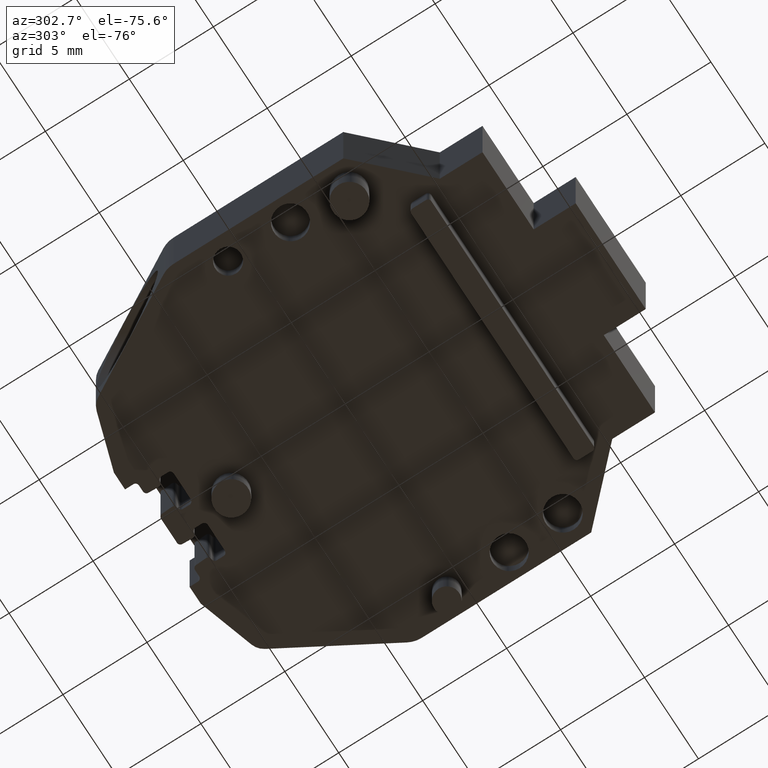
[diagram: clean part render]
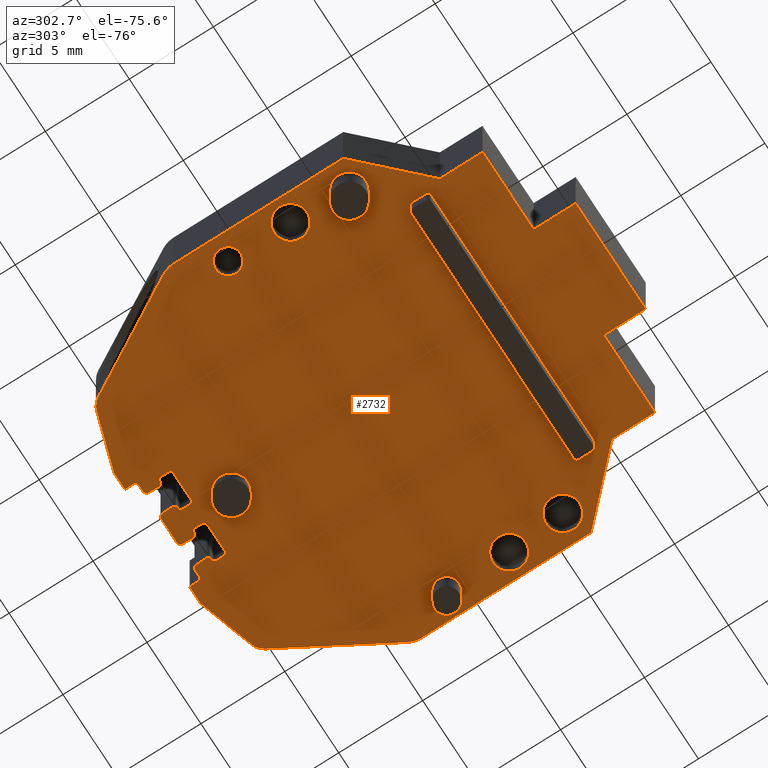
[diagram: same view with one face highlighted and labeled with its STEP entity id]
A machine part, auxiliary view. The second image highlights one B-rep face of the part: STEP entity #2732.
In plain terms, the highlighted planar face has unit normal (0, 0, 1).
Its self-contained STEP definition (entity closure, byte-faithful):
#17 = CARTESIAN_POINT ( 'NONE',  ( 284.1081404499333900, 456.0046860200184300, -56.83000000000000500 ) ) ;
#23 = CARTESIAN_POINT ( 'NONE',  ( 279.9868997377750500, 449.3919330427179400, -56.83000000000000500 ) ) ;
#24 = CARTESIAN_POINT ( 'NONE',  ( 283.2859378434519600, 432.5003766282130200, -56.83000000000001300 ) ) ;
#27 = CARTESIAN_POINT ( 'NONE',  ( 283.5428208456533000, 455.5509690692700200, -56.83000000000000500 ) ) ;
#30 = CARTESIAN_POINT ( 'NONE',  ( 299.2859378434519600, 432.5003766282130200, -56.83000000000001300 ) ) ;
#35 = CARTESIAN_POINT ( 'NONE',  ( 279.7859378434514500, 438.5444896448189500, -56.83000000000001300 ) ) ;
#39 = CARTESIAN_POINT ( 'NONE',  ( 288.2920486904611200, 456.5016313775170100, -56.83000000000000500 ) ) ;
#43 = CARTESIAN_POINT ( 'NONE',  ( 288.0359378434521300, 430.0003766282130800, -56.83000000000001300 ) ) ;
#46 = CARTESIAN_POINT ( 'NONE',  ( 294.5359378434520200, 430.0003766282130800, -56.83000000000001300 ) ) ;
#50 = CARTESIAN_POINT ( 'NONE',  ( 294.5359378434520200, 432.5003766282130200, -56.83000000000001300 ) ) ;
#55 = CARTESIAN_POINT ( 'NONE',  ( 283.7649751005490100, 435.8503766282130400, -56.83000000000000500 ) ) ;
#65 = CARTESIAN_POINT ( 'NONE',  ( 299.2859378434519600, 435.0444896448179300, -56.83000000000001300 ) ) ;
#66 = CARTESIAN_POINT ( 'NONE',  ( 288.0359378434521300, 432.5003766282130200, -56.83000000000001300 ) ) ;
#67 = CARTESIAN_POINT ( 'NONE',  ( 279.7859378434514500, 448.6419330427179900, -56.83000000000000500 ) ) ;
#69 = CARTESIAN_POINT ( 'NONE',  ( 283.2859378434519600, 435.0444896448184400, -56.83000000000001300 ) ) ;
#76 = CARTESIAN_POINT ( 'NONE',  ( 302.7859378434516200, 438.5444896448179300, -56.83000000000001300 ) ) ;
#87 = DIRECTION ( 'NONE',  ( -0.0000000000000000000, -0.0000000000000000000, 1.000000000000000000 ) ) ;
#99 = CARTESIAN_POINT ( 'NONE',  ( 284.4088462494376000, 455.0509690692701400, -56.83000000000000500 ) ) ;
#100 = CARTESIAN_POINT ( 'NONE',  ( 294.2795907366747800, 440.0117559366233900, -56.83000000000000500 ) ) ;
#101 = DIRECTION ( 'NONE',  ( -1.000000000000000000, 5.551115123125777700E-014, 0.0000000000000000000 ) ) ;
#139 = DIRECTION ( 'NONE',  ( 1.390694383119340700E-005, 0.9999999999032984600, 0.0000000000000000000 ) ) ;
#160 = CARTESIAN_POINT ( 'NONE',  ( 281.3859378434639800, 439.2072313446219600, -56.83000000000000500 ) ) ;
#165 = DIRECTION ( 'NONE',  ( -0.0000000000000000000, -0.0000000000000000000, 1.000000000000000000 ) ) ;
#168 = DIRECTION ( 'NONE',  ( 1.000000000000000000, 0.0000000000000000000, 0.0000000000000000000 ) ) ;
#185 = DIRECTION ( 'NONE',  ( -0.0000000000000000000, -0.0000000000000000000, -1.000000000000000000 ) ) ;
#188 = DIRECTION ( 'NONE',  ( -0.0000000000000000000, -0.0000000000000000000, -1.000000000000000000 ) ) ;
#189 = DIRECTION ( 'NONE',  ( 1.000000000000000000, 0.0000000000000000000, 0.0000000000000000000 ) ) ;
#197 = CARTESIAN_POINT ( 'NONE',  ( 301.1859378434595600, 439.2072313446179800, -56.83000000000000500 ) ) ;
#201 = DIRECTION ( 'NONE',  ( -1.000000000000000000, 0.0000000000000000000, 0.0000000000000000000 ) ) ;
#202 = CARTESIAN_POINT ( 'NONE',  ( 288.9108106226161700, 454.7052138238250300, -56.83000000000000500 ) ) ;
#205 = DIRECTION ( 'NONE',  ( -1.000000000000000000, 0.0000000000000000000, 0.0000000000000000000 ) ) ;
#216 = LINE ( 'NONE', #218, #4402 ) ;
#218 = CARTESIAN_POINT ( 'NONE',  ( 293.6606835609339900, 454.5052019535990000, -56.83000000000000500 ) ) ;
#224 = CARTESIAN_POINT ( 'NONE',  ( 290.5068563677299900, 454.7052037537719700, -56.83000000000000500 ) ) ;
#225 = DIRECTION ( 'NONE',  ( -1.000000000000000000, 0.0000000000000000000, 0.0000000000000000000 ) ) ;
#228 = DIRECTION ( 'NONE',  ( 1.000000000000000000, 0.0000000000000000000, 0.0000000000000000000 ) ) ;
#232 = CARTESIAN_POINT ( 'NONE',  ( 301.4259378434514900, 442.5572313446180000, -56.83000000000000500 ) ) ;
#234 = DIRECTION ( 'NONE',  ( -0.0000000000000000000, -0.0000000000000000000, -1.000000000000000000 ) ) ;
#242 = DIRECTION ( 'NONE',  ( -0.0000000000000000000, -0.0000000000000000000, 1.000000000000000000 ) ) ;
#255 = DIRECTION ( 'NONE',  ( -1.000000000000000000, 0.0000000000000000000, 0.0000000000000000000 ) ) ;
#260 = CARTESIAN_POINT ( 'NONE',  ( 293.6606835609339900, 454.7052019535989900, -56.83000000000000500 ) ) ;
#267 = DIRECTION ( 'NONE',  ( -0.0000000000000000000, -0.0000000000000000000, 1.000000000000000000 ) ) ;
#285 = CARTESIAN_POINT ( 'NONE',  ( 290.5229063895730000, 455.5037689013719300, -56.83000000000000500 ) ) ;
#287 = DIRECTION ( 'NONE',  ( -0.0000000000000000000, -0.0000000000000000000, 1.000000000000000000 ) ) ;
#289 = DIRECTION ( 'NONE',  ( -1.000000000000000000, 0.0000000000000000000, 0.0000000000000000000 ) ) ;
#305 = CARTESIAN_POINT ( 'NONE',  ( 301.4252887473445500, 446.2741209569410300, -56.83000000000000500 ) ) ;
#321 = DIRECTION ( 'NONE',  ( 1.000000000000000000, 0.0000000000000000000, 0.0000000000000000000 ) ) ;
#329 = DIRECTION ( 'NONE',  ( -0.0000000000000000000, -0.0000000000000000000, -1.000000000000000000 ) ) ;
#336 = LINE ( 'NONE', #367, #4471 ) ;
#367 = CARTESIAN_POINT ( 'NONE',  ( 290.5068551058545800, 454.5052037537760200, -56.83000000000000500 ) ) ;
#375 = DIRECTION ( 'NONE',  ( 0.9999999999800958100, -6.309376706133646600E-006, 0.0000000000000000000 ) ) ;
#384 = DIRECTION ( 'NONE',  ( -0.0000000000000000000, -0.0000000000000000000, 1.000000000000000000 ) ) ;
#387 = DIRECTION ( 'NONE',  ( -1.000000000000000000, 0.0000000000000000000, 0.0000000000000000000 ) ) ;
#390 = DIRECTION ( 'NONE',  ( -0.0000000000000000000, -0.0000000000000000000, 1.000000000000000000 ) ) ;
#395 = CARTESIAN_POINT ( 'NONE',  ( 292.0646318890470100, 454.7052019535989900, -56.83000000000000500 ) ) ;
#398 = DIRECTION ( 'NONE',  ( -1.000000000000000000, 0.0000000000000000000, 0.0000000000000000000 ) ) ;
#399 = DIRECTION ( 'NONE',  ( -1.000000000000000000, 0.0000000000000000000, 0.0000000000000000000 ) ) ;
#400 = DIRECTION ( 'NONE',  ( -0.0000000000000000000, -0.0000000000000000000, -1.000000000000000000 ) ) ;
#401 = DIRECTION ( 'NONE',  ( -0.0000000000000000000, -0.0000000000000000000, 1.000000000000000000 ) ) ;
#402 = DIRECTION ( 'NONE',  ( 1.000000000000000000, 0.0000000000000000000, 0.0000000000000000000 ) ) ;
#405 = LINE ( 'NONE', #463, #4433 ) ;
#408 = CARTESIAN_POINT ( 'NONE',  ( 290.5068581680789600, 455.1040893572000000, -56.83000000000000500 ) ) ;
#413 = CARTESIAN_POINT ( 'NONE',  ( 293.6767323104389800, 455.5037672983211200, -56.83000000000000500 ) ) ;
#416 = CARTESIAN_POINT ( 'NONE',  ( 281.1465869395589700, 446.2741209569480200, -56.83000000000000500 ) ) ;
#423 = DIRECTION ( 'NONE',  ( 1.000000000000000000, 0.0000000000000000000, 0.0000000000000000000 ) ) ;
#425 = DIRECTION ( 'NONE',  ( -0.0000000000000000000, -0.0000000000000000000, 1.000000000000000000 ) ) ;
#427 = LINE ( 'NONE', #466, #4468 ) ;
#432 = DIRECTION ( 'NONE',  ( 0.0000000000000000000, 1.000000000000000000, 0.0000000000000000000 ) ) ;
#446 = CARTESIAN_POINT ( 'NONE',  ( 291.2859378434519600, 452.5954399154260800, -56.83000000000000500 ) ) ;
#452 = DIRECTION ( 'NONE',  ( 4.368507394529123000E-006, -0.9999999999904580800, 0.0000000000000000000 ) ) ;
#455 = CARTESIAN_POINT ( 'NONE',  ( 293.6606835609339900, 455.1040893809440000, -56.83000000000000500 ) ) ;
#456 = DIRECTION ( 'NONE',  ( -1.000000000000000000, 0.0000000000000000000, 0.0000000000000000000 ) ) ;
#460 = DIRECTION ( 'NONE',  ( -0.0000000000000000000, -0.0000000000000000000, -1.000000000000000000 ) ) ;
#463 = CARTESIAN_POINT ( 'NONE',  ( 290.7068563677300400, 454.7052037537719700, -56.83000000000000500 ) ) ;
#466 = CARTESIAN_POINT ( 'NONE',  ( 291.8646318890490100, 454.7052010798979600, -56.83000000000000500 ) ) ;
#514 = DIRECTION ( 'NONE',  ( -0.0000000000000000000, -0.0000000000000000000, -1.000000000000000000 ) ) ;
#515 = CARTESIAN_POINT ( 'NONE',  ( 293.8606835609340400, 455.1040893809440000, -56.83000000000000500 ) ) ;
#520 = LINE ( 'NONE', #515, #4526 ) ;
#535 = DIRECTION ( 'NONE',  ( -1.000000000000000000, 0.0000000000000000000, 0.0000000000000000000 ) ) ;
#537 = CARTESIAN_POINT ( 'NONE',  ( 281.1459378434525400, 442.5572313446180000, -56.83000000000000500 ) ) ;
#539 = DIRECTION ( 'NONE',  ( 0.0000000000000000000, 1.000000000000000000, 0.0000000000000000000 ) ) ;
#615 = LINE ( 'NONE', #644, #4522 ) ;
#644 = CARTESIAN_POINT ( 'NONE',  ( 288.7108106226160100, 454.7052138238250300, -56.83000000000000500 ) ) ;
#648 = DIRECTION ( 'NONE',  ( -0.0000000000000000000, -1.000000000000000000, 0.0000000000000000000 ) ) ;
#649 = DIRECTION ( 'NONE',  ( -0.0000000000000000000, -0.0000000000000000000, 1.000000000000000000 ) ) ;
#651 = LINE ( 'NONE', #100, #3857 ) ;
#652 = CARTESIAN_POINT ( 'NONE',  ( 292.2483965457590200, 455.5124932857519900, -56.83000000000000500 ) ) ;
#656 = DIRECTION ( 'NONE',  ( -0.0000000000000000000, -0.0000000000000000000, 1.000000000000000000 ) ) ;
#659 = DIRECTION ( 'NONE',  ( -0.0000000000000000000, -0.0000000000000000000, 1.000000000000000000 ) ) ;
#661 = DIRECTION ( 'NONE',  ( -1.000000000000000000, -9.714286099459775500E-012, 0.0000000000000000000 ) ) ;
#671 = DIRECTION ( 'NONE',  ( -1.000000000000000000, 0.0000000000000000000, 0.0000000000000000000 ) ) ;
#672 = LINE ( 'NONE', #652, #3845 ) ;
#674 = DIRECTION ( 'NONE',  ( 0.04362993715479864700, -0.9990477609122940800, 0.0000000000000000000 ) ) ;
#678 = CARTESIAN_POINT ( 'NONE',  ( 290.5229063895730000, 455.5037689013719300, -56.83000000000000500 ) ) ;
#682 = DIRECTION ( 'NONE',  ( -1.000000000000000000, 0.0000000000000000000, 0.0000000000000000000 ) ) ;
#684 = CARTESIAN_POINT ( 'NONE',  ( 288.8947624654876400, 455.5037690984780200, -56.83000000000000500 ) ) ;
#691 = CARTESIAN_POINT ( 'NONE',  ( 292.0485869935766300, 455.5037672983211200, -56.83000000000000500 ) ) ;
#771 = EDGE_LOOP ( 'NONE', ( #1159, #1156 ) ) ;
#787 = EDGE_LOOP ( 'NONE', ( #1123, #1121 ) ) ;
#795 = EDGE_LOOP ( 'NONE', ( #1171, #1149 ) ) ;
#809 = EDGE_LOOP ( 'NONE', ( #1092, #1105, #1128, #1130, #1103, #1094, #1098, #1245, #1184, #1174, #1191, #1160, #1198, #1195, #1167, #1205, #1206, #1177, #1207, #1168, #1164, #1151, #1150, #1209, #1188, #1180, #1173, #1202, #1186, #1148, #1200, #1146, #1170, #1201, #1158, #1165, #1189, #1196, #1166, #1194, #1208, #1193, #1175, #1241, #1197, #1161, #1183, #1203, #1176, #1181, #1236, #1238, #1162, #1154, #1178, #1169 ) ) ;
#819 = EDGE_LOOP ( 'NONE', ( #1187, #1190 ) ) ;
#828 = EDGE_LOOP ( 'NONE', ( #1157, #1104 ) ) ;
#836 = CARTESIAN_POINT ( 'NONE',  ( 290.2859378434519600, 452.5954399154260800, -56.83000000000000500 ) ) ;
#840 = CARTESIAN_POINT ( 'NONE',  ( 300.6752887473441000, 446.2741209569410300, -56.83000000000000500 ) ) ;
#841 = EDGE_LOOP ( 'NONE', ( #1125, #1147, #1119, #1086, #1088, #1090, #1117, #1139 ) ) ;
#854 = EDGE_LOOP ( 'NONE', ( #1182, #1192 ) ) ;
#866 = EDGE_LOOP ( 'NONE', ( #1127, #1172 ) ) ;
#875 = CARTESIAN_POINT ( 'NONE',  ( 302.1859378434527300, 439.2072313446179800, -56.83000000000000500 ) ) ;
#883 = CARTESIAN_POINT ( 'NONE',  ( 290.5068551058545800, 454.5052037537760200, -56.83000000000000500 ) ) ;
#884 = CARTESIAN_POINT ( 'NONE',  ( 302.1752887473449500, 446.2741209569410300, -56.83000000000000500 ) ) ;
#887 = CARTESIAN_POINT ( 'NONE',  ( 288.7108106226160100, 454.7052138238250900, -56.83000000000000500 ) ) ;
#893 = CARTESIAN_POINT ( 'NONE',  ( 292.2859378434519600, 452.5954399154260800, -56.83000000000000500 ) ) ;
#894 = CARTESIAN_POINT ( 'NONE',  ( 291.8646301465086000, 455.1040879815687400, -56.83000000000000500 ) ) ;
#901 = CARTESIAN_POINT ( 'NONE',  ( 300.1859378434663800, 439.2072313446179800, -56.83000000000000500 ) ) ;
#903 = CARTESIAN_POINT ( 'NONE',  ( 282.3859378434512500, 439.2072313446219600, -56.83000000000000500 ) ) ;
#905 = CARTESIAN_POINT ( 'NONE',  ( 293.4767323104390500, 455.5037672983211200, -56.83000000000000500 ) ) ;
#908 = CARTESIAN_POINT ( 'NONE',  ( 293.6606835609339900, 454.5052019535990000, -56.83000000000000500 ) ) ;
#918 = CARTESIAN_POINT ( 'NONE',  ( 290.3230934614184100, 455.5124956180832800, -56.83000000000000500 ) ) ;
#930 = CARTESIAN_POINT ( 'NONE',  ( 302.4059378434515100, 442.5572313446180000, -56.83000000000000500 ) ) ;
#931 = CARTESIAN_POINT ( 'NONE',  ( 280.3859378434767700, 439.2072313446219600, -56.83000000000000500 ) ) ;
#938 = CARTESIAN_POINT ( 'NONE',  ( 281.8965869395589700, 446.2741209569480200, -56.83000000000000500 ) ) ;
#944 = CARTESIAN_POINT ( 'NONE',  ( 280.1659378434525800, 442.5572313446180000, -56.83000000000000500 ) ) ;
#945 = CARTESIAN_POINT ( 'NONE',  ( 294.2798269964685000, 457.0003766282129000, -56.83000000000000500 ) ) ;
#950 = CARTESIAN_POINT ( 'NONE',  ( 290.3229029849788400, 455.5037689013719300, -56.83000000000000500 ) ) ;
#954 = CARTESIAN_POINT ( 'NONE',  ( 293.8606835609340400, 455.1040893809440000, -56.83000000000000500 ) ) ;
#964 = CARTESIAN_POINT ( 'NONE',  ( 288.9108093607408700, 454.5052138238294800, -56.83000000000000500 ) ) ;
#970 = CARTESIAN_POINT ( 'NONE',  ( 300.4459378434515300, 442.5572313446180000, -56.83000000000000500 ) ) ;
#972 = CARTESIAN_POINT ( 'NONE',  ( 288.2920486904610600, 457.0003766282127300, -56.83000000000001300 ) ) ;
#974 = CARTESIAN_POINT ( 'NONE',  ( 288.7108106226160700, 455.1040911573150000, -56.83000000000000500 ) ) ;
#976 = CARTESIAN_POINT ( 'NONE',  ( 293.8606835609340400, 454.7052019535989900, -56.83000000000000500 ) ) ;
#977 = CARTESIAN_POINT ( 'NONE',  ( 291.8646318890486100, 454.7052011672678300, -56.83000000000000500 ) ) ;
#983 = CARTESIAN_POINT ( 'NONE',  ( 290.7068563677300400, 454.7052037537719700, -56.83000000000000500 ) ) ;
#984 = CARTESIAN_POINT ( 'NONE',  ( 290.5148821744148800, 455.3039265289373200, -56.83000000000000500 ) ) ;
#987 = CARTESIAN_POINT ( 'NONE',  ( 290.7068563677299800, 455.1040870071065000, -56.83000000000000500 ) ) ;
#990 = CARTESIAN_POINT ( 'NONE',  ( 292.0646318890470100, 454.5052019535990000, -56.83000000000000500 ) ) ;
#991 = CARTESIAN_POINT ( 'NONE',  ( 293.6687079356864300, 455.3039283396325900, -56.83000000000000500 ) ) ;
#992 = CARTESIAN_POINT ( 'NONE',  ( 295.3058080792579900, 457.0003766282129000, -56.83000000000001300 ) ) ;
#993 = CARTESIAN_POINT ( 'NONE',  ( 292.2483965457590200, 455.5124932857520400, -56.83000000000000500 ) ) ;
#994 = CARTESIAN_POINT ( 'NONE',  ( 289.0945721627969600, 455.5124917621238300, -56.83000000000000500 ) ) ;
#997 = CARTESIAN_POINT ( 'NONE',  ( 292.0566085700355600, 455.3039282272886200, -56.83000000000000500 ) ) ;
#1003 = CARTESIAN_POINT ( 'NONE',  ( 280.3965869395589200, 446.2741209569480200, -56.83000000000000500 ) ) ;
#1006 = CARTESIAN_POINT ( 'NONE',  ( 282.1259378434525000, 442.5572313446180000, -56.83000000000000500 ) ) ;
#1009 = CARTESIAN_POINT ( 'NONE',  ( 293.7028309886400200, 456.3016313775186700, -56.83000000000000500 ) ) ;
#1017 = CARTESIAN_POINT ( 'NONE',  ( 288.8686628735419500, 456.3016313775172000, -56.83000000000000500 ) ) ;
#1020 = CARTESIAN_POINT ( 'NONE',  ( 294.2798200604076400, 456.5016285961286300, -56.83000000000000500 ) ) ;
#1021 = CARTESIAN_POINT ( 'NONE',  ( 288.4920486904611600, 456.3016313775171400, -56.83000000000000500 ) ) ;
#1023 = CARTESIAN_POINT ( 'NONE',  ( 288.9027865440519900, 455.3039301278964800, -56.83000000000000500 ) ) ;
#1024 = CARTESIAN_POINT ( 'NONE',  ( 293.4769225986792700, 455.5124896309550900, -56.83000000000000500 ) ) ;
#1025 = CARTESIAN_POINT ( 'NONE',  ( 283.5649751005490200, 436.0503766282129700, -56.83000000000000500 ) ) ;
#1026 = CARTESIAN_POINT ( 'NONE',  ( 298.8069005863550300, 435.8503766282131000, -56.83000000000000500 ) ) ;
#1028 = CARTESIAN_POINT ( 'NONE',  ( 287.2660676076465100, 457.0003766282126200, -56.83000000000001300 ) ) ;
#1031 = CARTESIAN_POINT ( 'NONE',  ( 299.0069005863550200, 436.0503766282129700, -56.83000000000000500 ) ) ;
#1032 = CARTESIAN_POINT ( 'NONE',  ( 292.0224773587595500, 456.3016313775181600, -56.83000000000000500 ) ) ;
#1043 = CARTESIAN_POINT ( 'NONE',  ( 293.5030212768805300, 456.1103537101510600, -56.83000000000000500 ) ) ;
#1047 = CARTESIAN_POINT ( 'NONE',  ( 294.0798200604269800, 456.3016313775187900, -56.83000000000000500 ) ) ;
#1051 = CARTESIAN_POINT ( 'NONE',  ( 302.7859378434515600, 448.6419330427179900, -56.83000000000000500 ) ) ;
#1052 = CARTESIAN_POINT ( 'NONE',  ( 290.3492001394502000, 456.1103564262995700, -56.83000000000000500 ) ) ;
#1056 = CARTESIAN_POINT ( 'NONE',  ( 299.0290548412494300, 455.5509690692700800, -56.83000000000000500 ) ) ;
#1057 = CARTESIAN_POINT ( 'NONE',  ( 289.0684725708515500, 456.1103540411628500, -56.83000000000000500 ) ) ;
#1060 = CARTESIAN_POINT ( 'NONE',  ( 283.5649751005490200, 436.8467608090039700, -56.83000000000000500 ) ) ;
#1062 = CARTESIAN_POINT ( 'NONE',  ( 290.5490097326225500, 456.3016313775177100, -56.83000000000000500 ) ) ;
#1069 = CARTESIAN_POINT ( 'NONE',  ( 298.8069005863550300, 437.0467608090039600, -56.83000000000000500 ) ) ;
#1072 = CARTESIAN_POINT ( 'NONE',  ( 302.5849759491280200, 449.3919330427179400, -56.83000000000000500 ) ) ;
#1073 = CARTESIAN_POINT ( 'NONE',  ( 283.7649751005490100, 437.0467608090039600, -56.83000000000000500 ) ) ;
#1074 = CARTESIAN_POINT ( 'NONE',  ( 299.0069005863550200, 436.8467608090039700, -56.83000000000000500 ) ) ;
#1077 = CARTESIAN_POINT ( 'NONE',  ( 298.4637352369693400, 456.0046860200179700, -56.83000000000000500 ) ) ;
#1078 = CARTESIAN_POINT ( 'NONE',  ( 292.2222869109418800, 456.1103573649479600, -56.83000000000000500 ) ) ;
#1086 = ORIENTED_EDGE ( 'NONE', *, *, #2596, .F. ) ;
#1088 = ORIENTED_EDGE ( 'NONE', *, *, #2631, .F. ) ;
#1090 = ORIENTED_EDGE ( 'NONE', *, *, #2601, .F. ) ;
#1092 = ORIENTED_EDGE ( 'NONE', *, *, #2808, .F. ) ;
#1094 = ORIENTED_EDGE ( 'NONE', *, *, #2839, .F. ) ;
#1098 = ORIENTED_EDGE ( 'NONE', *, *, #2841, .F. ) ;
#1103 = ORIENTED_EDGE ( 'NONE', *, *, #2781, .F. ) ;
#1104 = ORIENTED_EDGE ( 'NONE', *, *, #2355, .F. ) ;
#1105 = ORIENTED_EDGE ( 'NONE', *, *, #2812, .F. ) ;
#1117 = ORIENTED_EDGE ( 'NONE', *, *, #2566, .F. ) ;
#1119 = ORIENTED_EDGE ( 'NONE', *, *, #2646, .F. ) ;
#1121 = ORIENTED_EDGE ( 'NONE', *, *, #2572, .F. ) ;
#1123 = ORIENTED_EDGE ( 'NONE', *, *, #2314, .F. ) ;
#1125 = ORIENTED_EDGE ( 'NONE', *, *, #2550, .F. ) ;
#1127 = ORIENTED_EDGE ( 'NONE', *, *, #2647, .F. ) ;
#1128 = ORIENTED_EDGE ( 'NONE', *, *, #2821, .F. ) ;
#1130 = ORIENTED_EDGE ( 'NONE', *, *, #2842, .F. ) ;
#1139 = ORIENTED_EDGE ( 'NONE', *, *, #2571, .F. ) ;
#1146 = ORIENTED_EDGE ( 'NONE', *, *, #2806, .T. ) ;
#1147 = ORIENTED_EDGE ( 'NONE', *, *, #2570, .F. ) ;
#1148 = ORIENTED_EDGE ( 'NONE', *, *, #2509, .T. ) ;
#1149 = ORIENTED_EDGE ( 'NONE', *, *, #2324, .F. ) ;
#1150 = ORIENTED_EDGE ( 'NONE', *, *, #2313, .T. ) ;
#1151 = ORIENTED_EDGE ( 'NONE', *, *, #2454, .T. ) ;
#1154 = ORIENTED_EDGE ( 'NONE', *, *, #2636, .F. ) ;
#1156 = ORIENTED_EDGE ( 'NONE', *, *, #2402, .F. ) ;
#1157 = ORIENTED_EDGE ( 'NONE', *, *, #2629, .F. ) ;
#1158 = ORIENTED_EDGE ( 'NONE', *, *, #2468, .F. ) ;
#1159 = ORIENTED_EDGE ( 'NONE', *, *, #2637, .F. ) ;
#1160 = ORIENTED_EDGE ( 'NONE', *, *, #2281, .F. ) ;
#1161 = ORIENTED_EDGE ( 'NONE', *, *, #2587, .F. ) ;
#1162 = ORIENTED_EDGE ( 'NONE', *, *, #2815, .T. ) ;
#1164 = ORIENTED_EDGE ( 'NONE', *, *, #2505, .T. ) ;
#1165 = ORIENTED_EDGE ( 'NONE', *, *, #2501, .T. ) ;
#1166 = ORIENTED_EDGE ( 'NONE', *, *, #2332, .T. ) ;
#1167 = ORIENTED_EDGE ( 'NONE', *, *, #2483, .T. ) ;
#1168 = ORIENTED_EDGE ( 'NONE', *, *, #2467, .F. ) ;
#1169 = ORIENTED_EDGE ( 'NONE', *, *, #2834, .T. ) ;
#1170 = ORIENTED_EDGE ( 'NONE', *, *, #2568, .F. ) ;
#1171 = ORIENTED_EDGE ( 'NONE', *, *, #2535, .F. ) ;
#1172 = ORIENTED_EDGE ( 'NONE', *, *, #2307, .F. ) ;
#1173 = ORIENTED_EDGE ( 'NONE', *, *, #2379, .T. ) ;
#1174 = ORIENTED_EDGE ( 'NONE', *, *, #2822, .F. ) ;
#1175 = ORIENTED_EDGE ( 'NONE', *, *, #2384, .F. ) ;
#1176 = ORIENTED_EDGE ( 'NONE', *, *, #2480, .T. ) ;
#1177 = ORIENTED_EDGE ( 'NONE', *, *, #2630, .F. ) ;
#1178 = ORIENTED_EDGE ( 'NONE', *, *, #2840, .T. ) ;
#1180 = ORIENTED_EDGE ( 'NONE', *, *, #2390, .T. ) ;
#1181 = ORIENTED_EDGE ( 'NONE', *, *, #2539, .T. ) ;
#1182 = ORIENTED_EDGE ( 'NONE', *, *, #2383, .F. ) ;
#1183 = ORIENTED_EDGE ( 'NONE', *, *, #2787, .T. ) ;
#1184 = ORIENTED_EDGE ( 'NONE', *, *, #2800, .T. ) ;
#1186 = ORIENTED_EDGE ( 'NONE', *, *, #2470, .F. ) ;
#1187 = ORIENTED_EDGE ( 'NONE', *, *, #2635, .F. ) ;
#1188 = ORIENTED_EDGE ( 'NONE', *, *, #2330, .T. ) ;
#1189 = ORIENTED_EDGE ( 'NONE', *, *, #2395, .T. ) ;
#1190 = ORIENTED_EDGE ( 'NONE', *, *, #2425, .F. ) ;
#1191 = ORIENTED_EDGE ( 'NONE', *, *, #2827, .T. ) ;
#1192 = ORIENTED_EDGE ( 'NONE', *, *, #2643, .F. ) ;
#1193 = ORIENTED_EDGE ( 'NONE', *, *, #2396, .T. ) ;
#1194 = ORIENTED_EDGE ( 'NONE', *, *, #2334, .T. ) ;
#1195 = ORIENTED_EDGE ( 'NONE', *, *, #2548, .T. ) ;
#1196 = ORIENTED_EDGE ( 'NONE', *, *, #2377, .T. ) ;
#1197 = ORIENTED_EDGE ( 'NONE', *, *, #2528, .T. ) ;
#1198 = ORIENTED_EDGE ( 'NONE', *, *, #2811, .T. ) ;
#1200 = ORIENTED_EDGE ( 'NONE', *, *, #2564, .F. ) ;
#1201 = ORIENTED_EDGE ( 'NONE', *, *, #2474, .T. ) ;
#1202 = ORIENTED_EDGE ( 'NONE', *, *, #2345, .F. ) ;
#1203 = ORIENTED_EDGE ( 'NONE', *, *, #2567, .F. ) ;
#1205 = ORIENTED_EDGE ( 'NONE', *, *, #2618, .F. ) ;
#1206 = ORIENTED_EDGE ( 'NONE', *, *, #2785, .T. ) ;
#1207 = ORIENTED_EDGE ( 'NONE', *, *, #2495, .T. ) ;
#1208 = ORIENTED_EDGE ( 'NONE', *, *, #2427, .T. ) ;
#1209 = ORIENTED_EDGE ( 'NONE', *, *, #2362, .T. ) ;
#1236 = ORIENTED_EDGE ( 'NONE', *, *, #2797, .T. ) ;
#1238 = ORIENTED_EDGE ( 'NONE', *, *, #2627, .F. ) ;
#1241 = ORIENTED_EDGE ( 'NONE', *, *, #2581, .F. ) ;
#1245 = ORIENTED_EDGE ( 'NONE', *, *, #2813, .T. ) ;
#1722 = VERTEX_POINT ( 'NONE', #840 ) ;
#1730 = VERTEX_POINT ( 'NONE', #836 ) ;
#1738 = VERTEX_POINT ( 'NONE', #875 ) ;
#1749 = VERTEX_POINT ( 'NONE', #901 ) ;
#1752 = VERTEX_POINT ( 'NONE', #893 ) ;
#1753 = VERTEX_POINT ( 'NONE', #931 ) ;
#1765 = VERTEX_POINT ( 'NONE', #903 ) ;
#1774 = VERTEX_POINT ( 'NONE', #884 ) ;
#1780 = VERTEX_POINT ( 'NONE', #918 ) ;
#1782 = VERTEX_POINT ( 'NONE', #944 ) ;
#1793 = VERTEX_POINT ( 'NONE', #930 ) ;
#1800 = VERTEX_POINT ( 'NONE', #938 ) ;
#1801 = VERTEX_POINT ( 'NONE', #905 ) ;
#1802 = VERTEX_POINT ( 'NONE', #883 ) ;
#1804 = VERTEX_POINT ( 'NONE', #887 ) ;
#1806 = VERTEX_POINT ( 'NONE', #894 ) ;
#1808 = VERTEX_POINT ( 'NONE', #908 ) ;
#1814 = VERTEX_POINT ( 'NONE', #974 ) ;
#1815 = VERTEX_POINT ( 'NONE', #954 ) ;
#1816 = VERTEX_POINT ( 'NONE', #987 ) ;
#1817 = VERTEX_POINT ( 'NONE', #964 ) ;
#1824 = VERTEX_POINT ( 'NONE', #1006 ) ;
#1825 = VERTEX_POINT ( 'NONE', #976 ) ;
#1826 = VERTEX_POINT ( 'NONE', #977 ) ;
#1827 = VERTEX_POINT ( 'NONE', #970 ) ;
#1829 = VERTEX_POINT ( 'NONE', #950 ) ;
#1831 = VERTEX_POINT ( 'NONE', #1003 ) ;
#1834 = VERTEX_POINT ( 'NONE', #990 ) ;
#1835 = VERTEX_POINT ( 'NONE', #983 ) ;
#1839 = VERTEX_POINT ( 'NONE', #991 ) ;
#1840 = VERTEX_POINT ( 'NONE', #984 ) ;
#1841 = VERTEX_POINT ( 'NONE', #994 ) ;
#1846 = VERTEX_POINT ( 'NONE', #992 ) ;
#1847 = VERTEX_POINT ( 'NONE', #993 ) ;
#1851 = VERTEX_POINT ( 'NONE', #997 ) ;
#1854 = VERTEX_POINT ( 'NONE', #945 ) ;
#1872 = VERTEX_POINT ( 'NONE', #972 ) ;
#1877 = VERTEX_POINT ( 'NONE', #1023 ) ;
#1885 = VERTEX_POINT ( 'NONE', #1017 ) ;
#1886 = VERTEX_POINT ( 'NONE', #1020 ) ;
#1887 = VERTEX_POINT ( 'NONE', #1025 ) ;
#1888 = VERTEX_POINT ( 'NONE', #1057 ) ;
#1890 = VERTEX_POINT ( 'NONE', #1047 ) ;
#1897 = VERTEX_POINT ( 'NONE', #1062 ) ;
#1900 = VERTEX_POINT ( 'NONE', #1028 ) ;
#1901 = VERTEX_POINT ( 'NONE', #1031 ) ;
#1902 = VERTEX_POINT ( 'NONE', #1032 ) ;
#1911 = VERTEX_POINT ( 'NONE', #1051 ) ;
#1912 = VERTEX_POINT ( 'NONE', #1026 ) ;
#1914 = VERTEX_POINT ( 'NONE', #1052 ) ;
#1916 = VERTEX_POINT ( 'NONE', #1009 ) ;
#1917 = VERTEX_POINT ( 'NONE', #1056 ) ;
#1918 = VERTEX_POINT ( 'NONE', #1043 ) ;
#1920 = VERTEX_POINT ( 'NONE', #1021 ) ;
#1922 = VERTEX_POINT ( 'NONE', #1060 ) ;
#1926 = VERTEX_POINT ( 'NONE', #1024 ) ;
#1929 = VERTEX_POINT ( 'NONE', #1073 ) ;
#1931 = VERTEX_POINT ( 'NONE', #1069 ) ;
#1932 = VERTEX_POINT ( 'NONE', #1078 ) ;
#1933 = VERTEX_POINT ( 'NONE', #1077 ) ;
#1941 = VERTEX_POINT ( 'NONE', #1074 ) ;
#1942 = VERTEX_POINT ( 'NONE', #1072 ) ;
#1953 = VERTEX_POINT ( 'NONE', #50 ) ;
#1954 = VERTEX_POINT ( 'NONE', #27 ) ;
#1957 = VERTEX_POINT ( 'NONE', #24 ) ;
#1961 = VERTEX_POINT ( 'NONE', #76 ) ;
#1968 = VERTEX_POINT ( 'NONE', #69 ) ;
#1973 = VERTEX_POINT ( 'NONE', #23 ) ;
#1979 = VERTEX_POINT ( 'NONE', #30 ) ;
#1985 = VERTEX_POINT ( 'NONE', #65 ) ;
#1987 = VERTEX_POINT ( 'NONE', #17 ) ;
#1988 = VERTEX_POINT ( 'NONE', #66 ) ;
#1992 = VERTEX_POINT ( 'NONE', #67 ) ;
#1993 = VERTEX_POINT ( 'NONE', #35 ) ;
#1995 = VERTEX_POINT ( 'NONE', #55 ) ;
#1998 = VERTEX_POINT ( 'NONE', #46 ) ;
#2000 = VERTEX_POINT ( 'NONE', #43 ) ;
#2006 = VERTEX_POINT ( 'NONE', #39 ) ;
#2281 = EDGE_CURVE ( 'NONE', #1987, #1954, #4330, .T. ) ;
#2307 = EDGE_CURVE ( 'NONE', #1753, #1765, #4346, .T. ) ;
#2313 = EDGE_CURVE ( 'NONE', #1804, #1817, #4370, .T. ) ;
#2314 = EDGE_CURVE ( 'NONE', #1738, #1749, #4327, .T. ) ;
#2324 = EDGE_CURVE ( 'NONE', #1793, #1827, #4422, .T. ) ;
#2330 = EDGE_CURVE ( 'NONE', #1802, #1835, #4392, .T. ) ;
#2332 = EDGE_CURVE ( 'NONE', #1834, #1808, #216, .T. ) ;
#2334 = EDGE_CURVE ( 'NONE', #1808, #1825, #4417, .T. ) ;
#2345 = EDGE_CURVE ( 'NONE', #1829, #1840, #4407, .T. ) ;
#2355 = EDGE_CURVE ( 'NONE', #1722, #1774, #4388, .T. ) ;
#2362 = EDGE_CURVE ( 'NONE', #1817, #1802, #336, .T. ) ;
#2377 = EDGE_CURVE ( 'NONE', #1826, #1834, #4464, .T. ) ;
#2379 = EDGE_CURVE ( 'NONE', #1816, #1840, #4478, .T. ) ;
#2383 = EDGE_CURVE ( 'NONE', #1800, #1831, #4487, .T. ) ;
#2384 = EDGE_CURVE ( 'NONE', #1801, #1839, #4481, .T. ) ;
#2390 = EDGE_CURVE ( 'NONE', #1835, #1816, #405, .T. ) ;
#2395 = EDGE_CURVE ( 'NONE', #1806, #1826, #427, .T. ) ;
#2396 = EDGE_CURVE ( 'NONE', #1815, #1839, #4437, .T. ) ;
#2402 = EDGE_CURVE ( 'NONE', #1730, #1752, #4466, .T. ) ;
#2425 = EDGE_CURVE ( 'NONE', #1824, #1782, #4505, .T. ) ;
#2427 = EDGE_CURVE ( 'NONE', #1825, #1815, #520, .T. ) ;
#2454 = EDGE_CURVE ( 'NONE', #1814, #1804, #615, .T. ) ;
#2467 = EDGE_CURVE ( 'NONE', #1877, #1841, #3830, .T. ) ;
#2468 = EDGE_CURVE ( 'NONE', #1851, #1847, #3861, .T. ) ;
#2470 = EDGE_CURVE ( 'NONE', #1780, #1829, #3848, .T. ) ;
#2474 = EDGE_CURVE ( 'NONE', #1932, #1847, #672, .T. ) ;
#2480 = EDGE_CURVE ( 'NONE', #1886, #1854, #651, .T. ) ;
#2483 = EDGE_CURVE ( 'NONE', #1872, #2006, #3645, .T. ) ;
#2495 = EDGE_CURVE ( 'NONE', #1888, #1841, #3624, .T. ) ;
#2501 = EDGE_CURVE ( 'NONE', #1851, #1806, #3837, .T. ) ;
#2505 = EDGE_CURVE ( 'NONE', #1877, #1814, #3872, .T. ) ;
#2509 = EDGE_CURVE ( 'NONE', #1780, #1914, #3671, .T. ) ;
#2528 = EDGE_CURVE ( 'NONE', #1926, #1918, #3771, .T. ) ;
#2535 = EDGE_CURVE ( 'NONE', #1827, #1793, #3929, .T. ) ;
#2539 = EDGE_CURVE ( 'NONE', #1854, #1846, #3778, .T. ) ;
#2548 = EDGE_CURVE ( 'NONE', #1900, #1872, #2903, .T. ) ;
#2550 = EDGE_CURVE ( 'NONE', #1912, #1995, #2915, .T. ) ;
#2564 = EDGE_CURVE ( 'NONE', #1897, #1914, #3981, .T. ) ;
#2566 = EDGE_CURVE ( 'NONE', #1887, #1922, #2966, .T. ) ;
#2567 = EDGE_CURVE ( 'NONE', #1886, #1890, #3979, .T. ) ;
#2568 = EDGE_CURVE ( 'NONE', #1932, #1902, #3984, .T. ) ;
#2570 = EDGE_CURVE ( 'NONE', #1901, #1912, #3993, .T. ) ;
#2571 = EDGE_CURVE ( 'NONE', #1995, #1887, #3948, .T. ) ;
#2572 = EDGE_CURVE ( 'NONE', #1749, #1738, #3943, .T. ) ;
#2581 = EDGE_CURVE ( 'NONE', #1926, #1801, #3962, .T. ) ;
#2587 = EDGE_CURVE ( 'NONE', #1916, #1918, #3950, .T. ) ;
#2596 = EDGE_CURVE ( 'NONE', #1931, #1941, #3959, .T. ) ;
#2601 = EDGE_CURVE ( 'NONE', #1922, #1929, #3963, .T. ) ;
#2618 = EDGE_CURVE ( 'NONE', #1920, #2006, #4004, .T. ) ;
#2627 = EDGE_CURVE ( 'NONE', #1917, #1933, #4051, .T. ) ;
#2629 = EDGE_CURVE ( 'NONE', #1774, #1722, #4023, .T. ) ;
#2630 = EDGE_CURVE ( 'NONE', #1888, #1885, #4000, .T. ) ;
#2631 = EDGE_CURVE ( 'NONE', #1929, #1931, #3209, .T. ) ;
#2635 = EDGE_CURVE ( 'NONE', #1782, #1824, #3998, .T. ) ;
#2636 = EDGE_CURVE ( 'NONE', #1911, #1942, #4007, .T. ) ;
#2637 = EDGE_CURVE ( 'NONE', #1752, #1730, #4014, .T. ) ;
#2643 = EDGE_CURVE ( 'NONE', #1831, #1800, #3995, .T. ) ;
#2646 = EDGE_CURVE ( 'NONE', #1941, #1901, #3238, .T. ) ;
#2647 = EDGE_CURVE ( 'NONE', #1765, #1753, #4019, .T. ) ;
#2732 = ADVANCED_FACE ( 'NONE', ( #4553, #4559, #4554, #4541, #4543, #4557, #4560, #4568, #4540 ), #4542, .F. ) ;
#2781 = EDGE_CURVE ( 'NONE', #1988, #2000, #4816, .T. ) ;
#2785 = EDGE_CURVE ( 'NONE', #1920, #1885, #4805, .T. ) ;
#2787 = EDGE_CURVE ( 'NONE', #1916, #1890, #4848, .T. ) ;
#2797 = EDGE_CURVE ( 'NONE', #1846, #1933, #4831, .T. ) ;
#2800 = EDGE_CURVE ( 'NONE', #1993, #1992, #4893, .T. ) ;
#2806 = EDGE_CURVE ( 'NONE', #1897, #1902, #4913, .T. ) ;
#2808 = EDGE_CURVE ( 'NONE', #1979, #1985, #4885, .T. ) ;
#2811 = EDGE_CURVE ( 'NONE', #1987, #1900, #4910, .T. ) ;
#2812 = EDGE_CURVE ( 'NONE', #1953, #1979, #4904, .T. ) ;
#2813 = EDGE_CURVE ( 'NONE', #1968, #1993, #4926, .T. ) ;
#2815 = EDGE_CURVE ( 'NONE', #1917, #1942, #4942, .T. ) ;
#2821 = EDGE_CURVE ( 'NONE', #1998, #1953, #4924, .T. ) ;
#2822 = EDGE_CURVE ( 'NONE', #1973, #1992, #4234, .T. ) ;
#2827 = EDGE_CURVE ( 'NONE', #1973, #1954, #4932, .T. ) ;
#2834 = EDGE_CURVE ( 'NONE', #1961, #1985, #4988, .T. ) ;
#2839 = EDGE_CURVE ( 'NONE', #1957, #1988, #4971, .T. ) ;
#2840 = EDGE_CURVE ( 'NONE', #1911, #1961, #4969, .T. ) ;
#2841 = EDGE_CURVE ( 'NONE', #1968, #1957, #5004, .T. ) ;
#2842 = EDGE_CURVE ( 'NONE', #2000, #1998, #5041, .T. ) ;
#2903 = LINE ( 'NONE', #2914, #3924 ) ;
#2913 = CARTESIAN_POINT ( 'NONE',  ( 283.0543284832932600, 435.8503766282131000, -56.83000000000000500 ) ) ;
#2914 = CARTESIAN_POINT ( 'NONE',  ( 295.3058080792579900, 457.0003766282129600, -56.83000000000000500 ) ) ;
#2915 = LINE ( 'NONE', #2913, #3896 ) ;
#2916 = DIRECTION ( 'NONE',  ( -1.000000000000000000, -0.0000000000000000000, 0.0000000000000000000 ) ) ;
#2924 = DIRECTION ( 'NONE',  ( 1.000000000000000000, 6.214135429438520400E-014, 0.0000000000000000000 ) ) ;
#2930 = CARTESIAN_POINT ( 'NONE',  ( 283.7649751005490100, 436.0503766282129700, -56.83000000000000500 ) ) ;
#2933 = DIRECTION ( 'NONE',  ( 0.0000000000000000000, 0.0000000000000000000, -1.000000000000000000 ) ) ;
#2934 = CARTESIAN_POINT ( 'NONE',  ( 283.5649751005490200, 440.0119120457150600, -56.83000000000000500 ) ) ;
#2935 = DIRECTION ( 'NONE',  ( -1.000000000000000000, 0.0000000000000000000, 0.0000000000000000000 ) ) ;
#2937 = DIRECTION ( 'NONE',  ( -1.000000000000000000, 0.0000000000000000000, 0.0000000000000000000 ) ) ;
#2939 = CARTESIAN_POINT ( 'NONE',  ( 290.5490097326225500, 456.1016313775170400, -56.83000000000000500 ) ) ;
#2942 = DIRECTION ( 'NONE',  ( -1.000000000000000000, 0.0000000000000000000, 0.0000000000000000000 ) ) ;
#2943 = CARTESIAN_POINT ( 'NONE',  ( 292.0224773587595500, 456.1016313775170400, -56.83000000000000500 ) ) ;
#2945 = CARTESIAN_POINT ( 'NONE',  ( 301.1859378434595600, 439.2072313446179800, -56.83000000000000500 ) ) ;
#2949 = CARTESIAN_POINT ( 'NONE',  ( 298.8069005863550300, 436.0503766282129700, -56.83000000000000500 ) ) ;
#2956 = DIRECTION ( 'NONE',  ( -0.0000000000000000000, -0.0000000000000000000, 1.000000000000000000 ) ) ;
#2958 = DIRECTION ( 'NONE',  ( -0.0000000000000000000, 1.000000000000000000, 0.0000000000000000000 ) ) ;
#2959 = DIRECTION ( 'NONE',  ( -1.000000000000000000, 0.0000000000000000000, 0.0000000000000000000 ) ) ;
#2960 = CARTESIAN_POINT ( 'NONE',  ( 294.0798200604269800, 456.5016313775170100, -56.83000000000000500 ) ) ;
#2963 = DIRECTION ( 'NONE',  ( 0.0000000000000000000, 0.0000000000000000000, -1.000000000000000000 ) ) ;
#2965 = DIRECTION ( 'NONE',  ( -0.0000000000000000000, -0.0000000000000000000, 1.000000000000000000 ) ) ;
#2966 = LINE ( 'NONE', #2934, #3968 ) ;
#2970 = DIRECTION ( 'NONE',  ( 0.0000000000000000000, 0.0000000000000000000, -1.000000000000000000 ) ) ;
#2971 = DIRECTION ( 'NONE',  ( -1.000000000000000000, 0.0000000000000000000, 0.0000000000000000000 ) ) ;
#2972 = DIRECTION ( 'NONE',  ( -0.0000000000000000000, -0.0000000000000000000, -1.000000000000000000 ) ) ;
#2989 = CARTESIAN_POINT ( 'NONE',  ( 293.6767323104389800, 455.5037672983211200, -56.83000000000000500 ) ) ;
#2999 = DIRECTION ( 'NONE',  ( -0.0000000000000000000, -0.0000000000000000000, 1.000000000000000000 ) ) ;
#3011 = DIRECTION ( 'NONE',  ( -1.000000000000000000, -8.604228440845911500E-012, 0.0000000000000000000 ) ) ;
#3015 = DIRECTION ( 'NONE',  ( 1.000000000000000000, 0.0000000000000000000, 0.0000000000000000000 ) ) ;
#3028 = CARTESIAN_POINT ( 'NONE',  ( 298.8069005863550300, 436.8467608090039700, -56.83000000000000500 ) ) ;
#3030 = DIRECTION ( 'NONE',  ( -1.000000000000000000, 0.0000000000000000000, 0.0000000000000000000 ) ) ;
#3046 = DIRECTION ( 'NONE',  ( -0.0000000000000000000, -0.0000000000000000000, 1.000000000000000000 ) ) ;
#3057 = DIRECTION ( 'NONE',  ( 1.000000000000000000, 0.0000000000000000000, 0.0000000000000000000 ) ) ;
#3061 = CARTESIAN_POINT ( 'NONE',  ( 293.7028309886400200, 456.1016313775170400, -56.83000000000000500 ) ) ;
#3064 = DIRECTION ( 'NONE',  ( -0.0000000000000000000, -0.0000000000000000000, -1.000000000000000000 ) ) ;
#3075 = DIRECTION ( 'NONE',  ( 1.000000000000000000, 0.0000000000000000000, 0.0000000000000000000 ) ) ;
#3076 = DIRECTION ( 'NONE',  ( -0.0000000000000000000, -0.0000000000000000000, -1.000000000000000000 ) ) ;
#3096 = CARTESIAN_POINT ( 'NONE',  ( 283.7649751005490100, 436.8467608090039700, -56.83000000000000500 ) ) ;
#3157 = CARTESIAN_POINT ( 'NONE',  ( 288.4920486904611600, 456.5016313775170100, -56.83000000000000500 ) ) ;
#3170 = DIRECTION ( 'NONE',  ( -1.000000000000000000, 0.0000000000000000000, 0.0000000000000000000 ) ) ;
#3178 = DIRECTION ( 'NONE',  ( 0.0000000000000000000, 0.0000000000000000000, -1.000000000000000000 ) ) ;
#3183 = DIRECTION ( 'NONE',  ( -0.0000000000000000000, -0.0000000000000000000, 1.000000000000000000 ) ) ;
#3185 = DIRECTION ( 'NONE',  ( -1.000000000000000000, 1.110223024625217100E-013, 0.0000000000000000000 ) ) ;
#3186 = CARTESIAN_POINT ( 'NONE',  ( 283.0543284832932600, 437.0467608090039600, -56.83000000000000500 ) ) ;
#3189 = CARTESIAN_POINT ( 'NONE',  ( 288.8686628735420100, 456.1016313775170400, -56.83000000000000500 ) ) ;
#3193 = DIRECTION ( 'NONE',  ( -1.000000000000000000, 0.0000000000000000000, 0.0000000000000000000 ) ) ;
#3194 = DIRECTION ( 'NONE',  ( 1.000000000000000000, 0.0000000000000000000, -0.0000000000000000000 ) ) ;
#3200 = CARTESIAN_POINT ( 'NONE',  ( 298.1630294374650100, 455.0509690692701400, -56.83000000000000500 ) ) ;
#3204 = CARTESIAN_POINT ( 'NONE',  ( 301.4252887473445500, 446.2741209569410300, -56.83000000000000500 ) ) ;
#3206 = DIRECTION ( 'NONE',  ( 1.000000000000000000, 0.0000000000000000000, 0.0000000000000000000 ) ) ;
#3207 = DIRECTION ( 'NONE',  ( -0.0000000000000000000, -0.0000000000000000000, -1.000000000000000000 ) ) ;
#3209 = LINE ( 'NONE', #3186, #4054 ) ;
#3210 = DIRECTION ( 'NONE',  ( -0.0000000000000000000, -0.0000000000000000000, 1.000000000000000000 ) ) ;
#3218 = CARTESIAN_POINT ( 'NONE',  ( 281.1459378434525400, 442.5572313446180000, -56.83000000000000500 ) ) ;
#3219 = DIRECTION ( 'NONE',  ( -0.0000000000000000000, -0.0000000000000000000, -1.000000000000000000 ) ) ;
#3226 = DIRECTION ( 'NONE',  ( -0.0000000000000000000, -0.0000000000000000000, -1.000000000000000000 ) ) ;
#3236 = CARTESIAN_POINT ( 'NONE',  ( 281.1465869395589700, 446.2741209569480200, -56.83000000000000500 ) ) ;
#3238 = LINE ( 'NONE', #3279, #4031 ) ;
#3239 = CARTESIAN_POINT ( 'NONE',  ( 301.2859378434515100, 448.6419330427179900, -56.83000000000000500 ) ) ;
#3241 = DIRECTION ( 'NONE',  ( 1.000000000000000000, 0.0000000000000000000, 0.0000000000000000000 ) ) ;
#3245 = DIRECTION ( 'NONE',  ( -0.0000000000000000000, -0.0000000000000000000, 1.000000000000000000 ) ) ;
#3248 = DIRECTION ( 'NONE',  ( -1.000000000000000000, 3.700743415417185100E-014, 0.0000000000000000000 ) ) ;
#3256 = CARTESIAN_POINT ( 'NONE',  ( 291.2859378434519600, 452.5954399154260800, -56.83000000000000500 ) ) ;
#3258 = DIRECTION ( 'NONE',  ( -1.000000000000000000, 0.0000000000000000000, 0.0000000000000000000 ) ) ;
#3261 = DIRECTION ( 'NONE',  ( -0.0000000000000000000, -0.0000000000000000000, -1.000000000000000000 ) ) ;
#3262 = DIRECTION ( 'NONE',  ( 1.000000000000000000, 0.0000000000000000000, 0.0000000000000000000 ) ) ;
#3270 = CARTESIAN_POINT ( 'NONE',  ( 281.3859378434639800, 439.2072313446219600, -56.83000000000000500 ) ) ;
#3272 = DIRECTION ( 'NONE',  ( -0.0000000000000000000, -0.0000000000000000000, -1.000000000000000000 ) ) ;
#3279 = CARTESIAN_POINT ( 'NONE',  ( 299.0069005863550200, 440.0119120457150600, -56.83000000000000500 ) ) ;
#3292 = DIRECTION ( 'NONE',  ( 0.0000000000000000000, -1.000000000000000000, -0.0000000000000000000 ) ) ;
#3295 = DIRECTION ( 'NONE',  ( 1.000000000000000000, 0.0000000000000000000, 0.0000000000000000000 ) ) ;
#3621 = CARTESIAN_POINT ( 'NONE',  ( 288.2920486904610600, 457.4763382100359800, -56.83000000000000500 ) ) ;
#3624 = LINE ( 'NONE', #3637, #3819 ) ;
#3637 = CARTESIAN_POINT ( 'NONE',  ( 289.0945721627969600, 455.5124917621240000, -56.83000000000000500 ) ) ;
#3641 = DIRECTION ( 'NONE',  ( 0.04361331822863200700, -0.9990484865476189100, 0.0000000000000000000 ) ) ;
#3645 = LINE ( 'NONE', #3621, #3829 ) ;
#3667 = DIRECTION ( 'NONE',  ( -5.695163856378221100E-014, -1.000000000000000000, 0.0000000000000000000 ) ) ;
#3671 = LINE ( 'NONE', #3676, #3820 ) ;
#3672 = DIRECTION ( 'NONE',  ( -1.000000000000000000, -2.775557561563196800E-013, 0.0000000000000000000 ) ) ;
#3674 = DIRECTION ( 'NONE',  ( -1.000000000000000000, 0.0000000000000000000, 0.0000000000000000000 ) ) ;
#3676 = CARTESIAN_POINT ( 'NONE',  ( 290.3230935277659900, 455.5124971374871700, -56.83000000000000500 ) ) ;
#3678 = DIRECTION ( 'NONE',  ( -0.0000000000000000000, -0.0000000000000000000, 1.000000000000000000 ) ) ;
#3684 = DIRECTION ( 'NONE',  ( 0.04362524391085179100, 0.9990479658623597800, 0.0000000000000000000 ) ) ;
#3687 = CARTESIAN_POINT ( 'NONE',  ( 288.9108106226161700, 455.1040911573150000, -56.83000000000000500 ) ) ;
#3694 = DIRECTION ( 'NONE',  ( -0.0000000000000000000, -0.0000000000000000000, 1.000000000000000000 ) ) ;
#3695 = CARTESIAN_POINT ( 'NONE',  ( 292.0646301464944900, 455.1040891562560100, -56.83000000000000500 ) ) ;
#3756 = CARTESIAN_POINT ( 'NONE',  ( 301.4259378434514900, 442.5572313446180000, -56.83000000000000500 ) ) ;
#3771 = LINE ( 'NONE', #3790, #3894 ) ;
#3772 = CARTESIAN_POINT ( 'NONE',  ( 295.3058080792579900, 457.0003766282129600, -56.83000000000000500 ) ) ;
#3775 = DIRECTION ( 'NONE',  ( 1.000000000000000000, 6.214135429438520400E-014, 0.0000000000000000000 ) ) ;
#3778 = LINE ( 'NONE', #3772, #3908 ) ;
#3785 = DIRECTION ( 'NONE',  ( -0.0000000000000000000, -0.0000000000000000000, -1.000000000000000000 ) ) ;
#3790 = CARTESIAN_POINT ( 'NONE',  ( 293.5030212768804700, 456.1103537101510000, -56.83000000000000500 ) ) ;
#3792 = DIRECTION ( 'NONE',  ( -1.000000000000000000, 0.0000000000000000000, 0.0000000000000000000 ) ) ;
#3794 = DIRECTION ( 'NONE',  ( 0.04361166317021875100, 0.9990485587975828100, 0.0000000000000000000 ) ) ;
#3813 = AXIS2_PLACEMENT_3D ( 'NONE', #678, #649, #661 ) ;
#3819 = VECTOR ( 'NONE', #3641, 1000.000000000000100 ) ;
#3820 = VECTOR ( 'NONE', #3684, 1000.000000000000000 ) ;
#3823 = AXIS2_PLACEMENT_3D ( 'NONE', #691, #659, #682 ) ;
#3829 = VECTOR ( 'NONE', #3667, 1000.000000000000000 ) ;
#3830 = CIRCLE ( 'NONE', #3831, 0.1999999999999224600 ) ;
#3831 = AXIS2_PLACEMENT_3D ( 'NONE', #684, #656, #671 ) ;
#3837 = CIRCLE ( 'NONE', #3839, 0.2000000000000334800 ) ;
#3839 = AXIS2_PLACEMENT_3D ( 'NONE', #3695, #3694, #3674 ) ;
#3845 = VECTOR ( 'NONE', #674, 1000.000000000000100 ) ;
#3848 = CIRCLE ( 'NONE', #3813, 0.2000034045941956300 ) ;
#3857 = VECTOR ( 'NONE', #139, 1000.000000000000000 ) ;
#3861 = CIRCLE ( 'NONE', #3823, 0.1999999999999779700 ) ;
#3872 = CIRCLE ( 'NONE', #3873, 0.1999999999999779700 ) ;
#3873 = AXIS2_PLACEMENT_3D ( 'NONE', #3687, #3678, #3672 ) ;
#3889 = AXIS2_PLACEMENT_3D ( 'NONE', #3756, #3785, #3792 ) ;
#3894 = VECTOR ( 'NONE', #3794, 1000.000000000000100 ) ;
#3896 = VECTOR ( 'NONE', #2916, 1000.000000000000000 ) ;
#3908 = VECTOR ( 'NONE', #3775, 1000.000000000000000 ) ;
#3924 = VECTOR ( 'NONE', #2924, 1000.000000000000000 ) ;
#3929 = CIRCLE ( 'NONE', #3889, 0.9799999999999808900 ) ;
#3942 = AXIS2_PLACEMENT_3D ( 'NONE', #2939, #2965, #2959 ) ;
#3943 = CIRCLE ( 'NONE', #3951, 0.9999999999931730200 ) ;
#3948 = CIRCLE ( 'NONE', #3957, 0.1999999999999779700 ) ;
#3949 = AXIS2_PLACEMENT_3D ( 'NONE', #2949, #2970, #2971 ) ;
#3950 = CIRCLE ( 'NONE', #3965, 0.1999999999999779700 ) ;
#3951 = AXIS2_PLACEMENT_3D ( 'NONE', #2945, #2972, #3015 ) ;
#3955 = AXIS2_PLACEMENT_3D ( 'NONE', #2960, #2963, #2942 ) ;
#3957 = AXIS2_PLACEMENT_3D ( 'NONE', #2930, #2933, #2935 ) ;
#3959 = CIRCLE ( 'NONE', #3960, 0.1999999999999779700 ) ;
#3960 = AXIS2_PLACEMENT_3D ( 'NONE', #3028, #3064, #3057 ) ;
#3962 = CIRCLE ( 'NONE', #3966, 0.1999999999999779700 ) ;
#3963 = CIRCLE ( 'NONE', #3964, 0.1999999999999779700 ) ;
#3964 = AXIS2_PLACEMENT_3D ( 'NONE', #3096, #3076, #3075 ) ;
#3965 = AXIS2_PLACEMENT_3D ( 'NONE', #3061, #3046, #3030 ) ;
#3966 = AXIS2_PLACEMENT_3D ( 'NONE', #2989, #2999, #3011 ) ;
#3968 = VECTOR ( 'NONE', #2958, 1000.000000000000000 ) ;
#3979 = CIRCLE ( 'NONE', #3955, 0.1999999999999779700 ) ;
#3981 = CIRCLE ( 'NONE', #3942, 0.1999999999999779700 ) ;
#3984 = CIRCLE ( 'NONE', #3990, 0.1999999999999779700 ) ;
#3990 = AXIS2_PLACEMENT_3D ( 'NONE', #2943, #2956, #2937 ) ;
#3993 = CIRCLE ( 'NONE', #3949, 0.1999999999999779700 ) ;
#3995 = CIRCLE ( 'NONE', #4022, 0.7500000000000284200 ) ;
#3998 = CIRCLE ( 'NONE', #4056, 0.9799999999999808900 ) ;
#4000 = CIRCLE ( 'NONE', #4012, 0.1999999999999779700 ) ;
#4004 = CIRCLE ( 'NONE', #4028, 0.1999999999999779700 ) ;
#4007 = CIRCLE ( 'NONE', #4009, 1.500000000000001300 ) ;
#4008 = AXIS2_PLACEMENT_3D ( 'NONE', #3204, #3207, #3206 ) ;
#4009 = AXIS2_PLACEMENT_3D ( 'NONE', #3239, #3245, #3248 ) ;
#4012 = AXIS2_PLACEMENT_3D ( 'NONE', #3189, #3210, #3193 ) ;
#4014 = CIRCLE ( 'NONE', #4015, 1.000000000000000900 ) ;
#4015 = AXIS2_PLACEMENT_3D ( 'NONE', #3256, #3226, #3241 ) ;
#4019 = CIRCLE ( 'NONE', #4039, 0.9999999999872333200 ) ;
#4022 = AXIS2_PLACEMENT_3D ( 'NONE', #3236, #3261, #3262 ) ;
#4023 = CIRCLE ( 'NONE', #4008, 0.7500000000004170000 ) ;
#4028 = AXIS2_PLACEMENT_3D ( 'NONE', #3157, #3178, #3170 ) ;
#4031 = VECTOR ( 'NONE', #3292, 1000.000000000000000 ) ;
#4039 = AXIS2_PLACEMENT_3D ( 'NONE', #3270, #3272, #3295 ) ;
#4051 = CIRCLE ( 'NONE', #4053, 0.9999999999999453800 ) ;
#4053 = AXIS2_PLACEMENT_3D ( 'NONE', #3200, #3183, #3185 ) ;
#4054 = VECTOR ( 'NONE', #3194, 1000.000000000000000 ) ;
#4056 = AXIS2_PLACEMENT_3D ( 'NONE', #3218, #3219, #3258 ) ;
#4134 = AXIS2_PLACEMENT_3D ( 'NONE', #4546, #4547, #4549 ) ;
#4145 = VECTOR ( 'NONE', #4786, 1000.000000000000000 ) ;
#4183 = VECTOR ( 'NONE', #5003, 1000.000000000000000 ) ;
#4186 = VECTOR ( 'NONE', #4845, 1000.000000000000000 ) ;
#4187 = VECTOR ( 'NONE', #4833, 1000.000000000000000 ) ;
#4192 = VECTOR ( 'NONE', #4911, 1000.000000000000100 ) ;
#4193 = VECTOR ( 'NONE', #4947, 1000.000000000000000 ) ;
#4195 = AXIS2_PLACEMENT_3D ( 'NONE', #4961, #4929, #4952 ) ;
#4196 = VECTOR ( 'NONE', #4827, 1000.000000000000100 ) ;
#4197 = VECTOR ( 'NONE', #4930, 1000.000000000000000 ) ;
#4204 = VECTOR ( 'NONE', #4966, 1000.000000000000000 ) ;
#4212 = VECTOR ( 'NONE', #4908, 1000.000000000000000 ) ;
#4217 = VECTOR ( 'NONE', #4868, 1000.000000000000000 ) ;
#4218 = VECTOR ( 'NONE', #4941, 1000.000000000000100 ) ;
#4232 = VECTOR ( 'NONE', #4897, 1000.000000000000000 ) ;
#4233 = VECTOR ( 'NONE', #4927, 1000.000000000000000 ) ;
#4234 = CIRCLE ( 'NONE', #4195, 1.499999999999945800 ) ;
#4246 = VECTOR ( 'NONE', #5035, 1000.000000000000000 ) ;
#4256 = VECTOR ( 'NONE', #5043, 1000.000000000000000 ) ;
#4273 = VECTOR ( 'NONE', #4977, 1000.000000000000000 ) ;
#4302 = VECTOR ( 'NONE', #4973, 1000.000000000000000 ) ;
#4323 = AXIS2_PLACEMENT_3D ( 'NONE', #99, #87, #101 ) ;
#4326 = AXIS2_PLACEMENT_3D ( 'NONE', #202, #165, #201 ) ;
#4327 = CIRCLE ( 'NONE', #4329, 0.9999999999931730200 ) ;
#4329 = AXIS2_PLACEMENT_3D ( 'NONE', #197, #188, #189 ) ;
#4330 = CIRCLE ( 'NONE', #4323, 1.000000000000000900 ) ;
#4346 = CIRCLE ( 'NONE', #4358, 0.9999999999872333200 ) ;
#4358 = AXIS2_PLACEMENT_3D ( 'NONE', #160, #185, #168 ) ;
#4370 = CIRCLE ( 'NONE', #4326, 0.2000000000000334800 ) ;
#4382 = AXIS2_PLACEMENT_3D ( 'NONE', #305, #329, #321 ) ;
#4388 = CIRCLE ( 'NONE', #4382, 0.7500000000004170000 ) ;
#4389 = AXIS2_PLACEMENT_3D ( 'NONE', #285, #287, #289 ) ;
#4392 = CIRCLE ( 'NONE', #4401, 0.1999999999999779700 ) ;
#4397 = AXIS2_PLACEMENT_3D ( 'NONE', #232, #234, #225 ) ;
#4401 = AXIS2_PLACEMENT_3D ( 'NONE', #224, #242, #205 ) ;
#4402 = VECTOR ( 'NONE', #228, 1000.000000000000000 ) ;
#4407 = CIRCLE ( 'NONE', #4389, 0.2000034045941956300 ) ;
#4417 = CIRCLE ( 'NONE', #4426, 0.1999999999999779700 ) ;
#4422 = CIRCLE ( 'NONE', #4397, 0.9799999999999808900 ) ;
#4426 = AXIS2_PLACEMENT_3D ( 'NONE', #260, #267, #255 ) ;
#4433 = VECTOR ( 'NONE', #432, 1000.000000000000000 ) ;
#4436 = AXIS2_PLACEMENT_3D ( 'NONE', #395, #384, #399 ) ;
#4437 = CIRCLE ( 'NONE', #4450, 0.2000000000000334800 ) ;
#4450 = AXIS2_PLACEMENT_3D ( 'NONE', #455, #425, #456 ) ;
#4452 = AXIS2_PLACEMENT_3D ( 'NONE', #446, #460, #423 ) ;
#4460 = AXIS2_PLACEMENT_3D ( 'NONE', #413, #390, #398 ) ;
#4463 = AXIS2_PLACEMENT_3D ( 'NONE', #408, #401, #387 ) ;
#4464 = CIRCLE ( 'NONE', #4436, 0.1999999999999779700 ) ;
#4466 = CIRCLE ( 'NONE', #4452, 1.000000000000000900 ) ;
#4467 = AXIS2_PLACEMENT_3D ( 'NONE', #416, #400, #402 ) ;
#4468 = VECTOR ( 'NONE', #452, 1000.000000000000100 ) ;
#4471 = VECTOR ( 'NONE', #375, 1000.000000000000200 ) ;
#4478 = CIRCLE ( 'NONE', #4463, 0.1999981997061750500 ) ;
#4481 = CIRCLE ( 'NONE', #4460, 0.1999999999999779700 ) ;
#4487 = CIRCLE ( 'NONE', #4467, 0.7500000000000284200 ) ;
#4505 = CIRCLE ( 'NONE', #4519, 0.9799999999999808900 ) ;
#4519 = AXIS2_PLACEMENT_3D ( 'NONE', #537, #514, #535 ) ;
#4522 = VECTOR ( 'NONE', #648, 1000.000000000000000 ) ;
#4526 = VECTOR ( 'NONE', #539, 1000.000000000000000 ) ;
#4540 = FACE_BOUND ( 'NONE', #854, .T. ) ;
#4541 = FACE_BOUND ( 'NONE', #828, .T. ) ;
#4542 = PLANE ( 'NONE',  #4134 ) ;
#4543 = FACE_BOUND ( 'NONE', #841, .T. ) ;
#4546 = CARTESIAN_POINT ( 'NONE',  ( 283.0543284832932600, 440.0119120457150600, -56.83000000000000500 ) ) ;
#4547 = DIRECTION ( 'NONE',  ( 0.0000000000000000000, 0.0000000000000000000, 1.000000000000000000 ) ) ;
#4549 = DIRECTION ( 'NONE',  ( 1.000000000000000000, 0.0000000000000000000, -0.0000000000000000000 ) ) ;
#4553 = FACE_BOUND ( 'NONE', #787, .T. ) ;
#4554 = FACE_BOUND ( 'NONE', #771, .T. ) ;
#4557 = FACE_OUTER_BOUND ( 'NONE', #809, .T. ) ;
#4559 = FACE_BOUND ( 'NONE', #866, .T. ) ;
#4560 = FACE_BOUND ( 'NONE', #795, .T. ) ;
#4568 = FACE_BOUND ( 'NONE', #819, .T. ) ;
#4785 = CARTESIAN_POINT ( 'NONE',  ( 288.4920486904611600, 456.3016313775171400, -56.83000000000000500 ) ) ;
#4786 = DIRECTION ( 'NONE',  ( -0.0000000000000000000, -1.000000000000000000, 0.0000000000000000000 ) ) ;
#4805 = LINE ( 'NONE', #4785, #4187 ) ;
#4816 = LINE ( 'NONE', #4821, #4145 ) ;
#4821 = CARTESIAN_POINT ( 'NONE',  ( 288.0359378434521300, 432.5003766282130200, -56.83000000000000500 ) ) ;
#4827 = DIRECTION ( 'NONE',  ( 0.9537169507481976200, -0.3007057995043658800, 0.0000000000000000000 ) ) ;
#4831 = LINE ( 'NONE', #4859, #4196 ) ;
#4833 = DIRECTION ( 'NONE',  ( 1.000000000000000000, 2.947905507815070200E-013, 0.0000000000000000000 ) ) ;
#4845 = DIRECTION ( 'NONE',  ( 1.000000000000000000, 2.947905507815070200E-013, 0.0000000000000000000 ) ) ;
#4848 = LINE ( 'NONE', #4851, #4186 ) ;
#4851 = CARTESIAN_POINT ( 'NONE',  ( 288.4920486904611600, 456.3016313775171400, -56.83000000000000500 ) ) ;
#4859 = CARTESIAN_POINT ( 'NONE',  ( 298.4637352369695100, 456.0046860200179700, -56.83000000000000500 ) ) ;
#4868 = DIRECTION ( 'NONE',  ( 2.748772587465440200E-015, 1.000000000000000000, 0.0000000000000000000 ) ) ;
#4875 = CARTESIAN_POINT ( 'NONE',  ( 287.2660676076465100, 457.0003766282129600, -56.83000000000000500 ) ) ;
#4881 = CARTESIAN_POINT ( 'NONE',  ( 288.4920486904611600, 456.3016313775171400, -56.83000000000000500 ) ) ;
#4885 = LINE ( 'NONE', #4916, #4232 ) ;
#4887 = CARTESIAN_POINT ( 'NONE',  ( 279.7859378434514500, 448.6419330427179900, -56.83000000000000500 ) ) ;
#4893 = LINE ( 'NONE', #4887, #4217 ) ;
#4897 = DIRECTION ( 'NONE',  ( 0.0000000000000000000, 1.000000000000000000, 0.0000000000000000000 ) ) ;
#4904 = LINE ( 'NONE', #4923, #4197 ) ;
#4908 = DIRECTION ( 'NONE',  ( 1.000000000000000000, 2.947905507815070200E-013, 0.0000000000000000000 ) ) ;
#4910 = LINE ( 'NONE', #4875, #4192 ) ;
#4911 = DIRECTION ( 'NONE',  ( 0.9537169507482692300, 0.3007057995041385600, 0.0000000000000000000 ) ) ;
#4913 = LINE ( 'NONE', #4881, #4212 ) ;
#4916 = CARTESIAN_POINT ( 'NONE',  ( 299.2859378434519600, 435.4794962848770300, -56.83000000000000500 ) ) ;
#4923 = CARTESIAN_POINT ( 'NONE',  ( 299.2859378434519600, 432.5003766282130200, -56.83000000000000500 ) ) ;
#4924 = LINE ( 'NONE', #4954, #4233 ) ;
#4926 = LINE ( 'NONE', #4936, #4193 ) ;
#4927 = DIRECTION ( 'NONE',  ( 0.0000000000000000000, 1.000000000000000000, 0.0000000000000000000 ) ) ;
#4929 = DIRECTION ( 'NONE',  ( -0.0000000000000000000, -0.0000000000000000000, 1.000000000000000000 ) ) ;
#4930 = DIRECTION ( 'NONE',  ( 1.000000000000000000, 0.0000000000000000000, 0.0000000000000000000 ) ) ;
#4932 = LINE ( 'NONE', #5007, #4183 ) ;
#4936 = CARTESIAN_POINT ( 'NONE',  ( 279.7859378434514500, 438.5444896448189500, -56.83000000000000500 ) ) ;
#4941 = DIRECTION ( 'NONE',  ( 0.5000000000000188700, -0.8660254037844277200, 0.0000000000000000000 ) ) ;
#4942 = LINE ( 'NONE', #4948, #4218 ) ;
#4947 = DIRECTION ( 'NONE',  ( -0.7071067811865310300, 0.7071067811865640000, 0.0000000000000000000 ) ) ;
#4948 = CARTESIAN_POINT ( 'NONE',  ( 302.5849759491279700, 449.3919330427179900, -56.83000000000000500 ) ) ;
#4952 = DIRECTION ( 'NONE',  ( -1.000000000000000000, 7.401486830834644100E-014, 0.0000000000000000000 ) ) ;
#4954 = CARTESIAN_POINT ( 'NONE',  ( 294.5359378434520200, 432.5003766282130200, -56.83000000000000500 ) ) ;
#4961 = CARTESIAN_POINT ( 'NONE',  ( 281.2859378434514500, 448.6419330427179900, -56.83000000000000500 ) ) ;
#4966 = DIRECTION ( 'NONE',  ( -0.7071067811865450200, -0.7071067811865500200, 0.0000000000000000000 ) ) ;
#4969 = LINE ( 'NONE', #4974, #4273 ) ;
#4971 = LINE ( 'NONE', #4987, #4302 ) ;
#4973 = DIRECTION ( 'NONE',  ( 1.000000000000000000, 0.0000000000000000000, 0.0000000000000000000 ) ) ;
#4974 = CARTESIAN_POINT ( 'NONE',  ( 302.7859378434515600, 438.5444896448179900, -56.83000000000000500 ) ) ;
#4977 = DIRECTION ( 'NONE',  ( -0.0000000000000000000, -1.000000000000000000, 0.0000000000000000000 ) ) ;
#4987 = CARTESIAN_POINT ( 'NONE',  ( 288.0359378434521300, 432.5003766282130200, -56.83000000000000500 ) ) ;
#4988 = LINE ( 'NONE', #4989, #4204 ) ;
#4989 = CARTESIAN_POINT ( 'NONE',  ( 299.2418248268471100, 435.0003766282130200, -56.83000000000000500 ) ) ;
#5003 = DIRECTION ( 'NONE',  ( 0.5000000000000107700, 0.8660254037844324900, 0.0000000000000000000 ) ) ;
#5004 = LINE ( 'NONE', #5019, #4246 ) ;
#5007 = CARTESIAN_POINT ( 'NONE',  ( 283.5428208456534700, 455.5509690692699700, -56.83000000000000500 ) ) ;
#5013 = CARTESIAN_POINT ( 'NONE',  ( 294.5359378434520200, 430.0003766282131300, -56.83000000000000500 ) ) ;
#5019 = CARTESIAN_POINT ( 'NONE',  ( 283.2859378434519600, 435.4794962848770300, -56.83000000000000500 ) ) ;
#5035 = DIRECTION ( 'NONE',  ( -0.0000000000000000000, -1.000000000000000000, 0.0000000000000000000 ) ) ;
#5041 = LINE ( 'NONE', #5013, #4256 ) ;
#5043 = DIRECTION ( 'NONE',  ( 1.000000000000000000, 0.0000000000000000000, 0.0000000000000000000 ) ) ;